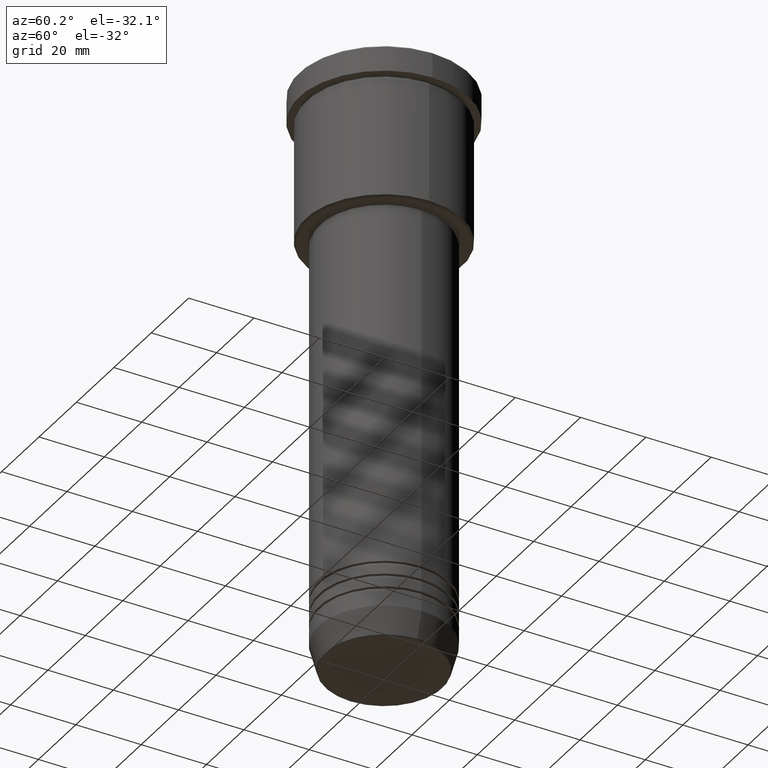
[diagram: clean part render]
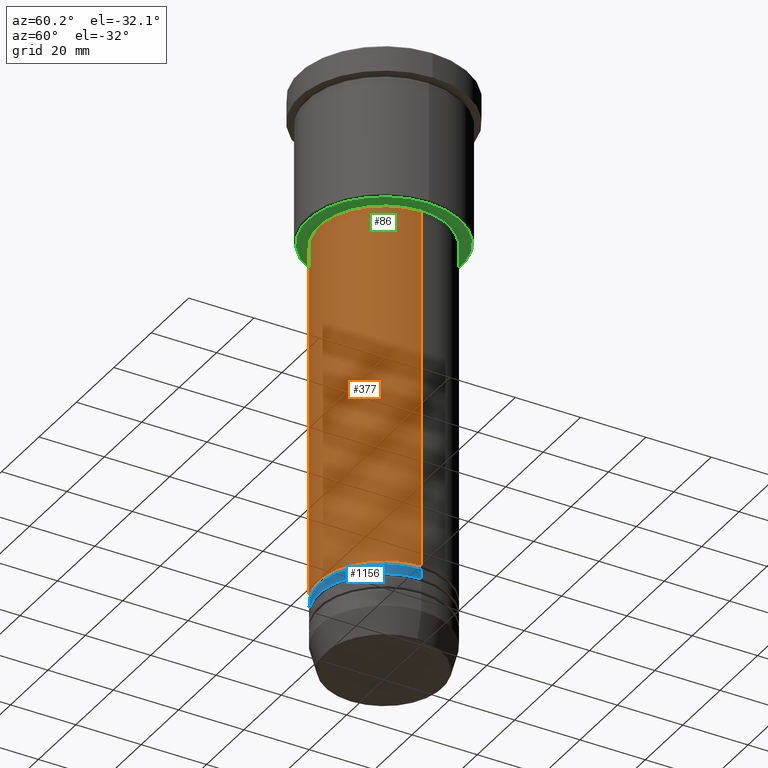
[diagram: same view with three faces highlighted in distinct colors, each labeled with its STEP entity id]
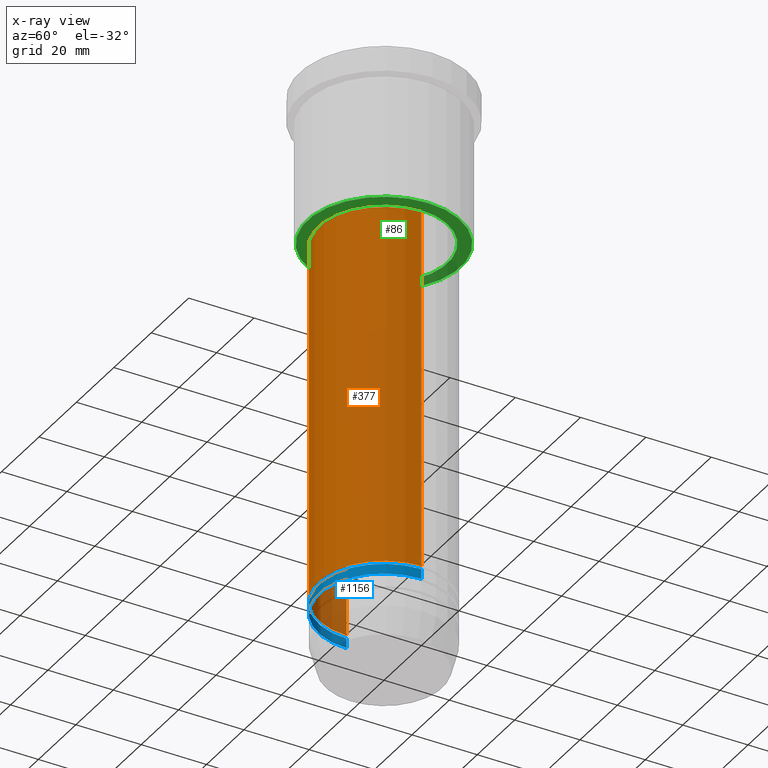
[diagram: x-ray of the same camera — body ghosted, the three highlighted faces saturated]
A machine part, auxiliary view with three faces highlighted in distinct colors.
The next image is the same camera in x-ray (body ghosted, the three faces saturated) — at least one of them is partly hidden behind the body in this view.
Their STEP definitions:

[orange] entity #377 — the highlighted cylindrical surface (partial cylindrical patch) has radius 20 mm, axis along (-0, -0, 1).
#73 = CIRCLE ( 'NONE', #112, 20.00000000000000355 ) ;
#103 = VERTEX_POINT ( 'NONE', #520 ) ;
#112 = AXIS2_PLACEMENT_3D ( 'NONE', #163, #1077, #156 ) ;
#124 = EDGE_CURVE ( 'NONE', #846, #103, #1171, .T. ) ;
#156 = DIRECTION ( 'NONE',  ( 1.000000000000000000, 0.000000000000000000, 0.000000000000000000 ) ) ;
#163 = CARTESIAN_POINT ( 'NONE',  ( 0.000000000000000000, 0.000000000000000000, -158.0000000000000000 ) ) ;
#166 = CIRCLE ( 'NONE', #266, 20.00000000000000355 ) ;
#195 = CARTESIAN_POINT ( 'NONE',  ( 0.000000000000000000, 0.000000000000000000, 0.000000000000000000 ) ) ;
#266 = AXIS2_PLACEMENT_3D ( 'NONE', #455, #1181, #643 ) ;
#274 = DIRECTION ( 'NONE',  ( -0.000000000000000000, -0.000000000000000000, 1.000000000000000000 ) ) ;
#278 = CYLINDRICAL_SURFACE ( 'NONE', #388, 20.00000000000000355 ) ;
#377 = ADVANCED_FACE ( 'NONE', ( #1178 ), #278, .T. ) ;
#388 = AXIS2_PLACEMENT_3D ( 'NONE', #195, #890, #646 ) ;
#437 = VERTEX_POINT ( 'NONE', #1111 ) ;
#455 = CARTESIAN_POINT ( 'NONE',  ( 0.000000000000000000, 0.000000000000000000, -47.00000000000003553 ) ) ;
#463 = DIRECTION ( 'NONE',  ( -0.000000000000000000, -0.000000000000000000, 1.000000000000000000 ) ) ;
#489 = VECTOR ( 'NONE', #274, 1000.000000000000000 ) ;
#509 = VECTOR ( 'NONE', #463, 1000.000000000000000 ) ;
#520 = CARTESIAN_POINT ( 'NONE',  ( 20.00000000000000355, 0.000000000000000000, -47.00000000000003553 ) ) ;
#595 = EDGE_CURVE ( 'NONE', #437, #846, #73, .T. ) ;
#635 = CARTESIAN_POINT ( 'NONE',  ( 20.00000000000000355, 0.000000000000000000, 0.000000000000000000 ) ) ;
#643 = DIRECTION ( 'NONE',  ( 1.000000000000000000, 0.000000000000000000, 0.000000000000000000 ) ) ;
#646 = DIRECTION ( 'NONE',  ( 1.000000000000000000, 0.000000000000000000, 0.000000000000000000 ) ) ;
#742 = LINE ( 'NONE', #924, #509 ) ;
#749 = CARTESIAN_POINT ( 'NONE',  ( -20.00000000000000355, 2.449293598294706907E-15, -47.00000000000003553 ) ) ;
#762 = ORIENTED_EDGE ( 'NONE', *, *, #1089, .F. ) ;
#833 = ORIENTED_EDGE ( 'NONE', *, *, #595, .T. ) ;
#846 = VERTEX_POINT ( 'NONE', #1058 ) ;
#890 = DIRECTION ( 'NONE',  ( -0.000000000000000000, -0.000000000000000000, 1.000000000000000000 ) ) ;
#924 = CARTESIAN_POINT ( 'NONE',  ( -20.00000000000000355, 2.449293598294706907E-15, 0.000000000000000000 ) ) ;
#929 = EDGE_LOOP ( 'NONE', ( #762, #833, #1142, #940 ) ) ;
#940 = ORIENTED_EDGE ( 'NONE', *, *, #1040, .F. ) ;
#989 = VERTEX_POINT ( 'NONE', #749 ) ;
#1040 = EDGE_CURVE ( 'NONE', #989, #103, #166, .T. ) ;
#1058 = CARTESIAN_POINT ( 'NONE',  ( 20.00000000000000355, 0.000000000000000000, -158.0000000000000000 ) ) ;
#1077 = DIRECTION ( 'NONE',  ( -0.000000000000000000, -0.000000000000000000, 1.000000000000000000 ) ) ;
#1089 = EDGE_CURVE ( 'NONE', #437, #989, #742, .T. ) ;
#1111 = CARTESIAN_POINT ( 'NONE',  ( -20.00000000000000355, 2.449293598294706907E-15, -158.0000000000000000 ) ) ;
#1142 = ORIENTED_EDGE ( 'NONE', *, *, #124, .T. ) ;
#1171 = LINE ( 'NONE', #635, #489 ) ;
#1178 = FACE_OUTER_BOUND ( 'NONE', #929, .T. ) ;
#1181 = DIRECTION ( 'NONE',  ( -0.000000000000000000, -0.000000000000000000, 1.000000000000000000 ) ) ;

[blue] entity #1156 — the highlighted cylindrical surface (partial cylindrical patch) has radius 20 mm, axis along (-0, -0, 1).
#15 = ORIENTED_EDGE ( 'NONE', *, *, #985, .F. ) ;
#33 = CYLINDRICAL_SURFACE ( 'NONE', #691, 20.00000000000000355 ) ;
#38 = CARTESIAN_POINT ( 'NONE',  ( 0.000000000000000000, 0.000000000000000000, -162.0000000000000000 ) ) ;
#102 = DIRECTION ( 'NONE',  ( 1.000000000000000000, 0.000000000000000000, 0.000000000000000000 ) ) ;
#120 = ORIENTED_EDGE ( 'NONE', *, *, #297, .T. ) ;
#132 = DIRECTION ( 'NONE',  ( 1.000000000000000000, 0.000000000000000000, 0.000000000000000000 ) ) ;
#172 = CIRCLE ( 'NONE', #325, 20.00000000000000000 ) ;
#217 = CARTESIAN_POINT ( 'NONE',  ( -20.00000000000000000, 2.449293598294706513E-15, -159.0000000000000000 ) ) ;
#256 = VERTEX_POINT ( 'NONE', #741 ) ;
#290 = CIRCLE ( 'NONE', #764, 20.00000000000000355 ) ;
#297 = EDGE_CURVE ( 'NONE', #1080, #256, #290, .T. ) ;
#307 = ORIENTED_EDGE ( 'NONE', *, *, #758, .T. ) ;
#325 = AXIS2_PLACEMENT_3D ( 'NONE', #440, #459, #102 ) ;
#403 = DIRECTION ( 'NONE',  ( -0.000000000000000000, -0.000000000000000000, 1.000000000000000000 ) ) ;
#435 = VECTOR ( 'NONE', #1113, 1000.000000000000000 ) ;
#440 = CARTESIAN_POINT ( 'NONE',  ( 0.000000000000000000, 0.000000000000000000, -159.0000000000000000 ) ) ;
#459 = DIRECTION ( 'NONE',  ( -0.000000000000000000, -0.000000000000000000, 1.000000000000000000 ) ) ;
#460 = VERTEX_POINT ( 'NONE', #217 ) ;
#484 = FACE_OUTER_BOUND ( 'NONE', #1149, .T. ) ;
#502 = VERTEX_POINT ( 'NONE', #511 ) ;
#511 = CARTESIAN_POINT ( 'NONE',  ( 20.00000000000000000, 0.000000000000000000, -159.0000000000000000 ) ) ;
#561 = CARTESIAN_POINT ( 'NONE',  ( -20.00000000000000355, 2.449293598294706907E-15, -162.0000000000000000 ) ) ;
#578 = CARTESIAN_POINT ( 'NONE',  ( 20.00000000000000355, 0.000000000000000000, 0.000000000000000000 ) ) ;
#580 = EDGE_CURVE ( 'NONE', #1080, #460, #781, .T. ) ;
#582 = DIRECTION ( 'NONE',  ( -0.000000000000000000, -0.000000000000000000, 1.000000000000000000 ) ) ;
#589 = VECTOR ( 'NONE', #930, 1000.000000000000000 ) ;
#645 = CARTESIAN_POINT ( 'NONE',  ( -20.00000000000000355, 2.449293598294706907E-15, 0.000000000000000000 ) ) ;
#691 = AXIS2_PLACEMENT_3D ( 'NONE', #771, #582, #132 ) ;
#741 = CARTESIAN_POINT ( 'NONE',  ( 20.00000000000000355, 0.000000000000000000, -162.0000000000000000 ) ) ;
#758 = EDGE_CURVE ( 'NONE', #256, #502, #1053, .T. ) ;
#764 = AXIS2_PLACEMENT_3D ( 'NONE', #38, #403, #782 ) ;
#771 = CARTESIAN_POINT ( 'NONE',  ( 0.000000000000000000, 0.000000000000000000, 0.000000000000000000 ) ) ;
#781 = LINE ( 'NONE', #645, #589 ) ;
#782 = DIRECTION ( 'NONE',  ( 1.000000000000000000, 0.000000000000000000, 0.000000000000000000 ) ) ;
#930 = DIRECTION ( 'NONE',  ( -0.000000000000000000, -0.000000000000000000, 1.000000000000000000 ) ) ;
#985 = EDGE_CURVE ( 'NONE', #460, #502, #172, .T. ) ;
#1013 = ORIENTED_EDGE ( 'NONE', *, *, #580, .F. ) ;
#1053 = LINE ( 'NONE', #578, #435 ) ;
#1080 = VERTEX_POINT ( 'NONE', #561 ) ;
#1113 = DIRECTION ( 'NONE',  ( -0.000000000000000000, -0.000000000000000000, 1.000000000000000000 ) ) ;
#1149 = EDGE_LOOP ( 'NONE', ( #1013, #120, #307, #15 ) ) ;
#1156 = ADVANCED_FACE ( 'NONE', ( #484 ), #33, .T. ) ;

[green] entity #86 — the highlighted planar face has unit normal (0, 0, -1).
#13 = DIRECTION ( 'NONE',  ( -0.000000000000000000, -0.000000000000000000, 1.000000000000000000 ) ) ;
#45 = DIRECTION ( 'NONE',  ( -1.000000000000000000, 0.000000000000000000, 0.000000000000000000 ) ) ;
#49 = EDGE_CURVE ( 'NONE', #1010, #1024, #584, .T. ) ;
#53 = ORIENTED_EDGE ( 'NONE', *, *, #134, .T. ) ;
#58 = VERTEX_POINT ( 'NONE', #506 ) ;
#69 = AXIS2_PLACEMENT_3D ( 'NONE', #844, #13, #754 ) ;
#84 = ORIENTED_EDGE ( 'NONE', *, *, #740, .T. ) ;
#86 = ADVANCED_FACE ( 'NONE', ( #413, #791 ), #1144, .T. ) ;
#122 = EDGE_LOOP ( 'NONE', ( #813, #84 ) ) ;
#134 = EDGE_CURVE ( 'NONE', #823, #58, #533, .T. ) ;
#161 = EDGE_LOOP ( 'NONE', ( #53, #627 ) ) ;
#260 = CARTESIAN_POINT ( 'NONE',  ( 0.000000000000000000, 0.000000000000000000, -46.00000000000000000 ) ) ;
#286 = CIRCLE ( 'NONE', #1052, 23.50000000000000355 ) ;
#287 = DIRECTION ( 'NONE',  ( -1.000000000000000000, 0.000000000000000000, 0.000000000000000000 ) ) ;
#310 = CARTESIAN_POINT ( 'NONE',  ( 0.000000000000000000, 0.000000000000000000, -46.00000000000000711 ) ) ;
#348 = CARTESIAN_POINT ( 'NONE',  ( -19.50000000000000355, 2.388061258337339333E-15, -46.00000000000000711 ) ) ;
#387 = CARTESIAN_POINT ( 'NONE',  ( 23.50000000000000355, 0.000000000000000000, -46.00000000000000000 ) ) ;
#408 = AXIS2_PLACEMENT_3D ( 'NONE', #260, #986, #287 ) ;
#413 = FACE_OUTER_BOUND ( 'NONE', #161, .T. ) ;
#474 = CIRCLE ( 'NONE', #659, 19.50000000000000355 ) ;
#478 = CARTESIAN_POINT ( 'NONE',  ( 0.000000000000000000, 0.000000000000000000, -46.00000000000000000 ) ) ;
#506 = CARTESIAN_POINT ( 'NONE',  ( -23.50000000000000355, 2.908536147974964502E-15, -46.00000000000000000 ) ) ;
#533 = CIRCLE ( 'NONE', #408, 23.50000000000000355 ) ;
#584 = CIRCLE ( 'NONE', #69, 19.50000000000000355 ) ;
#596 = DIRECTION ( 'NONE',  ( 1.000000000000000000, 0.000000000000000000, 0.000000000000000000 ) ) ;
#627 = ORIENTED_EDGE ( 'NONE', *, *, #832, .T. ) ;
#659 = AXIS2_PLACEMENT_3D ( 'NONE', #310, #779, #596 ) ;
#707 = DIRECTION ( 'NONE',  ( -1.000000000000000000, 0.000000000000000000, -0.000000000000000000 ) ) ;
#740 = EDGE_CURVE ( 'NONE', #1024, #1010, #474, .T. ) ;
#754 = DIRECTION ( 'NONE',  ( 1.000000000000000000, 0.000000000000000000, 0.000000000000000000 ) ) ;
#779 = DIRECTION ( 'NONE',  ( -0.000000000000000000, -0.000000000000000000, 1.000000000000000000 ) ) ;
#791 = FACE_BOUND ( 'NONE', #122, .T. ) ;
#813 = ORIENTED_EDGE ( 'NONE', *, *, #49, .T. ) ;
#823 = VERTEX_POINT ( 'NONE', #387 ) ;
#832 = EDGE_CURVE ( 'NONE', #58, #823, #286, .T. ) ;
#844 = CARTESIAN_POINT ( 'NONE',  ( 0.000000000000000000, 0.000000000000000000, -46.00000000000000711 ) ) ;
#892 = DIRECTION ( 'NONE',  ( 0.000000000000000000, 0.000000000000000000, -1.000000000000000000 ) ) ;
#986 = DIRECTION ( 'NONE',  ( 0.000000000000000000, 0.000000000000000000, -1.000000000000000000 ) ) ;
#1010 = VERTEX_POINT ( 'NONE', #1172 ) ;
#1024 = VERTEX_POINT ( 'NONE', #348 ) ;
#1052 = AXIS2_PLACEMENT_3D ( 'NONE', #478, #1130, #45 ) ;
#1063 = CARTESIAN_POINT ( 'NONE',  ( 0.000000000000000000, 24.00000000000000000, -46.00000000000000000 ) ) ;
#1130 = DIRECTION ( 'NONE',  ( 0.000000000000000000, 0.000000000000000000, -1.000000000000000000 ) ) ;
#1144 = PLANE ( 'NONE',  #1152 ) ;
#1152 = AXIS2_PLACEMENT_3D ( 'NONE', #1063, #892, #707 ) ;
#1172 = CARTESIAN_POINT ( 'NONE',  ( 19.50000000000000355, 0.000000000000000000, -46.00000000000000711 ) ) ;